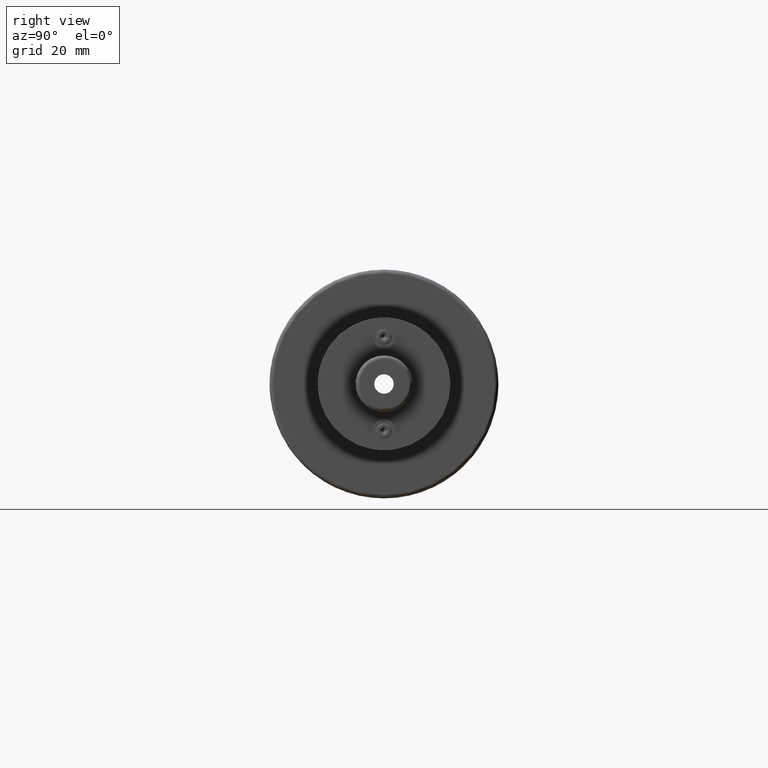
[diagram: clean part render]
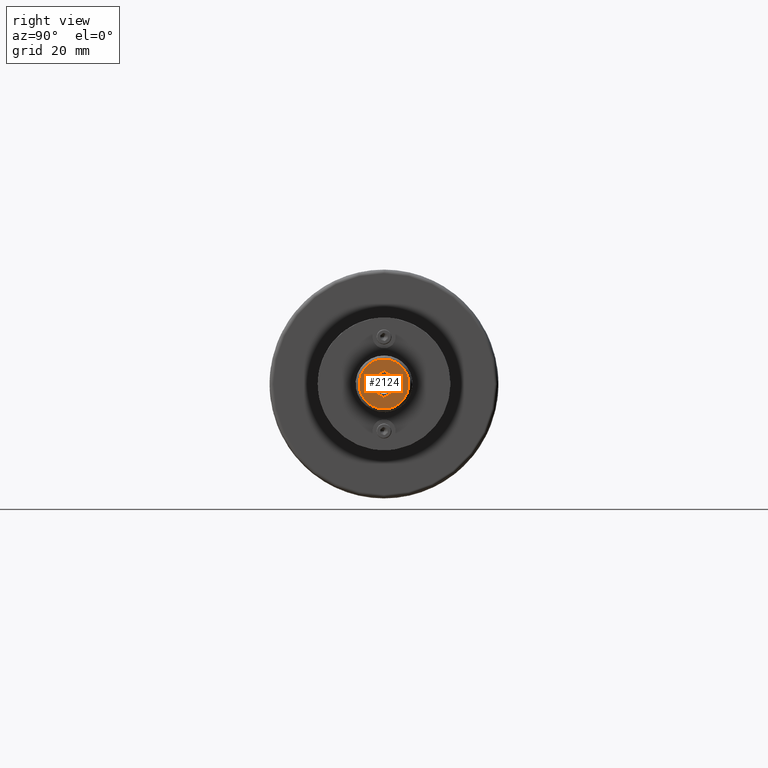
[diagram: same view with one face highlighted and labeled with its STEP entity id]
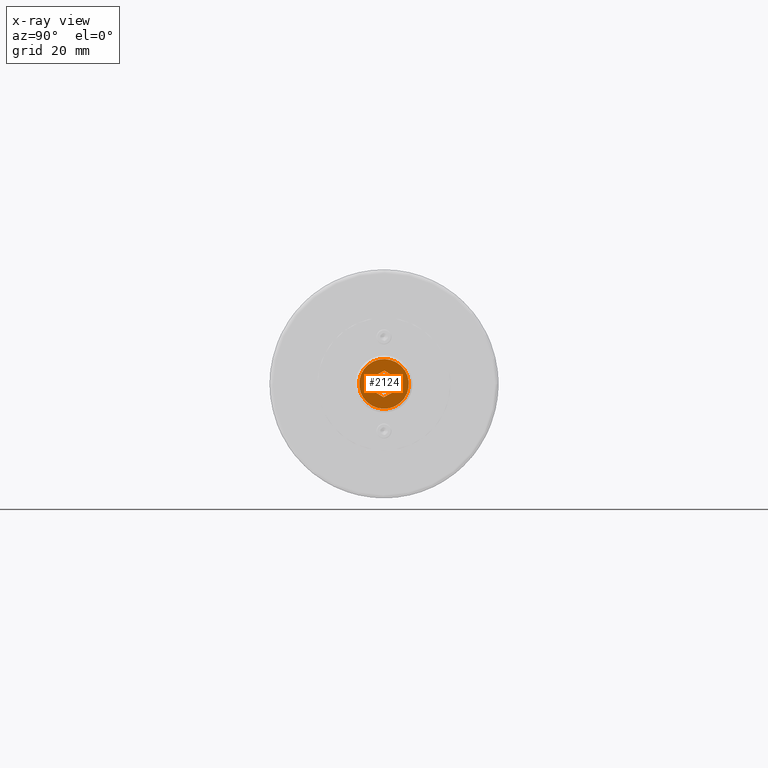
[diagram: x-ray of the same camera — body ghosted, the highlighted face saturated]
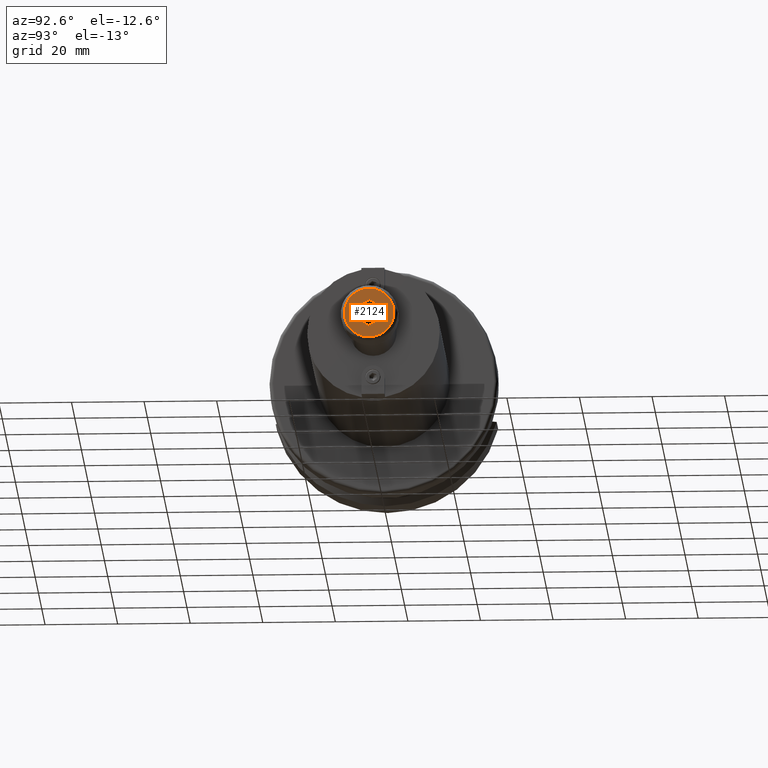
[diagram: same view with one face highlighted and labeled with its STEP entity id]
A machine part, right view. The second image highlights one B-rep face of the part: STEP entity #2124.
The next image is the same camera in x-ray: the body ghosted, the highlighted face saturated — about 0% of this face is hidden behind the body in this view.
A second angle (auxiliary view) of the same face is appended — the face is thin or edge-on in the first view.
In plain terms, the highlighted planar face has unit normal (1, 0, -0).
Its self-contained STEP definition (entity closure, byte-faithful):
#141=FACE_BOUND('',#581,.T.);
#293=CIRCLE('',#2483,6.85);
#432=FACE_OUTER_BOUND('',#580,.T.);
#580=EDGE_LOOP('',(#1938));
#581=EDGE_LOOP('',(#1939,#1940,#1941,#1942,#1943,#1944));
#701=LINE('',#3973,#835);
#704=LINE('',#3978,#838);
#706=LINE('',#3982,#840);
#708=LINE('',#3986,#842);
#710=LINE('',#3990,#844);
#712=LINE('',#3993,#846);
#835=VECTOR('',#3070,10.);
#838=VECTOR('',#3075,10.);
#840=VECTOR('',#3079,10.);
#842=VECTOR('',#3083,10.);
#844=VECTOR('',#3087,10.);
#846=VECTOR('',#3091,10.);
#1030=VERTEX_POINT('',#3971);
#1031=VERTEX_POINT('',#3972);
#1032=VERTEX_POINT('',#3977);
#1033=VERTEX_POINT('',#3981);
#1034=VERTEX_POINT('',#3985);
#1035=VERTEX_POINT('',#3989);
#1047=VERTEX_POINT('',#4029);
#1317=EDGE_CURVE('',#1030,#1031,#701,.T.);
#1320=EDGE_CURVE('',#1032,#1030,#704,.T.);
#1322=EDGE_CURVE('',#1033,#1032,#706,.T.);
#1324=EDGE_CURVE('',#1034,#1033,#708,.T.);
#1326=EDGE_CURVE('',#1035,#1034,#710,.T.);
#1328=EDGE_CURVE('',#1031,#1035,#712,.T.);
#1346=EDGE_CURVE('',#1047,#1047,#293,.T.);
#1938=ORIENTED_EDGE('',*,*,#1346,.F.);
#1939=ORIENTED_EDGE('',*,*,#1317,.T.);
#1940=ORIENTED_EDGE('',*,*,#1328,.T.);
#1941=ORIENTED_EDGE('',*,*,#1326,.T.);
#1942=ORIENTED_EDGE('',*,*,#1324,.T.);
#1943=ORIENTED_EDGE('',*,*,#1322,.T.);
#1944=ORIENTED_EDGE('',*,*,#1320,.T.);
#2001=PLANE('',#2484);
#2124=ADVANCED_FACE('',(#432,#141),#2001,.T.);
#2483=AXIS2_PLACEMENT_3D('',#4031,#3139,#3140);
#2484=AXIS2_PLACEMENT_3D('',#4032,#3141,#3142);
#3070=DIRECTION('',(0.,0.866025403784439,0.499999999999999));
#3075=DIRECTION('',(0.,0.866025403784438,-0.500000000000001));
#3079=DIRECTION('',(0.,-7.57071923773057E-16,-1.));
#3083=DIRECTION('',(0.,-0.866025403784439,-0.5));
#3087=DIRECTION('',(0.,-0.866025403784438,0.500000000000001));
#3091=DIRECTION('',(0.,1.3627294627915E-15,1.));
#3139=DIRECTION('center_axis',(1.,0.,0.));
#3140=DIRECTION('ref_axis',(0.,-1.,1.83697019872103E-16));
#3141=DIRECTION('center_axis',(-1.,0.,0.));
#3142=DIRECTION('ref_axis',(0.,0.,1.));
#3971=CARTESIAN_POINT('',(0.,-7.17700852783503E-15,-3.66617420935412));
#3972=CARTESIAN_POINT('',(0.,3.17499999999999,-1.83308710467706));
#3973=CARTESIAN_POINT('',(0.,3.7375,-1.5083275782579));
#3977=CARTESIAN_POINT('',(0.,-3.175,-1.83308710467706));
#3978=CARTESIAN_POINT('',(0.,0.562499999999994,-3.99093373577329));
#3981=CARTESIAN_POINT('',(0.,-3.175,1.83308710467706));
#3982=CARTESIAN_POINT('',(0.,-3.175,0.916543552338536));
#3985=CARTESIAN_POINT('',(0.,-1.64926451793496E-15,3.66617420935412));
#3986=CARTESIAN_POINT('',(0.,2.15,4.90747728811182));
#3989=CARTESIAN_POINT('',(0.,3.175,1.83308710467706));
#3990=CARTESIAN_POINT('',(0.,5.325,0.591784025919361));
#3993=CARTESIAN_POINT('',(0.,3.175,-0.916543552338529));
#4029=CARTESIAN_POINT('',(0.,-8.38883057415937E-16,6.85));
#4031=CARTESIAN_POINT('Origin',(0.,0.,0.));
#4032=CARTESIAN_POINT('Origin',(0.,7.85,0.));